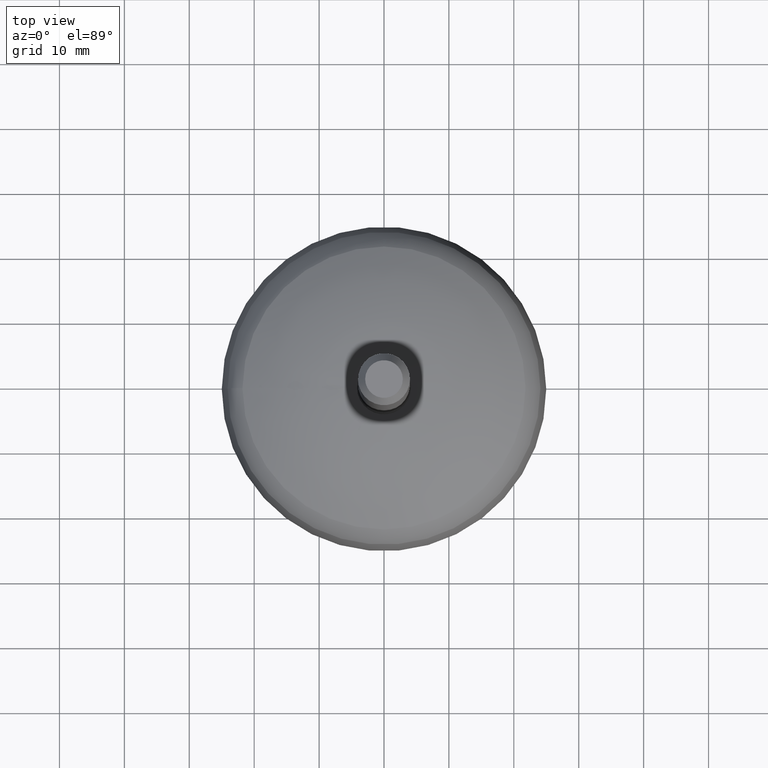
[diagram: clean part render]
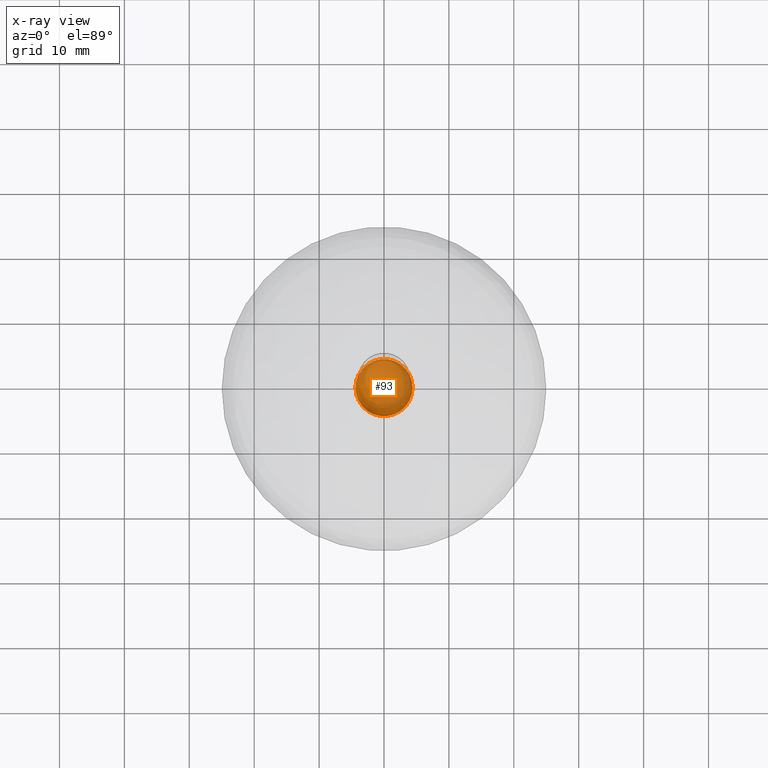
[diagram: x-ray — body ghosted, one internal face saturated and labeled with its STEP entity id]
A machine part, top view, then the same camera in x-ray: the body is ghosted and one INTERNAL B-rep face — a face not visible from any outside direction — is saturated and labeled: STEP entity #93.
In plain terms, the highlighted face is a freeform B-spline surface patch.
Its self-contained STEP definition (entity closure, byte-faithful):
#28=CARTESIAN_POINT('',(-4.400000000014926,-0.000000248901570,11.006289252533795));
#29=CARTESIAN_POINT('',(-4.400000248916524,4.399999999994966,11.006289252533794));
#30=CARTESIAN_POINT('',(-1.998046E-011,4.399999999994966,11.006289252533792));
#31=CARTESIAN_POINT('',(4.399999999974972,4.399999999994966,11.006289252533792));
#32=CARTESIAN_POINT('',(4.399999999974972,1.289336E-014,11.006289252533792));
#33=CARTESIAN_POINT('',(4.399999999974972,-4.399999999994940,11.006289252533792));
#34=CARTESIAN_POINT('',(-1.998046E-011,-4.399999999994940,11.006289252533792));
#35=CARTESIAN_POINT('',(-4.400000248916524,-4.399999999994939,11.006289252533794));
#36=CARTESIAN_POINT('',(-4.400000000014926,0.000000248901595,11.006289252533792));
#37=CARTESIAN_POINT('',(-4.400000000017384,-0.000000248901570,6.606293777734898));
#38=CARTESIAN_POINT('',(-4.400000248918979,4.399999999997423,6.606293777734897));
#39=CARTESIAN_POINT('',(-1.998046E-011,4.399999999997423,6.606293777734897));
#40=CARTESIAN_POINT('',(4.399999999977427,4.399999999997422,6.606293777734897));
#41=CARTESIAN_POINT('',(4.399999999977429,1.289336E-014,6.606293777734897));
#42=CARTESIAN_POINT('',(4.399999999977427,-4.399999999997394,6.606293777734897));
#43=CARTESIAN_POINT('',(-1.998046E-011,-4.399999999997396,6.606293777734897));
#44=CARTESIAN_POINT('',(-4.400000248918979,-4.399999999997395,6.606293777734897));
#45=CARTESIAN_POINT('',(-4.400000000017382,0.000000248901595,6.606293777734897));
#46=CARTESIAN_POINT('',(0.000000124430812,1.993336E-014,6.606293902185694));
#47=CARTESIAN_POINT('',(0.000000124430819,-0.000000124450779,6.606293902185693));
#48=CARTESIAN_POINT('',(-1.998046E-011,-0.000000124450779,6.606293902185692));
#49=CARTESIAN_POINT('',(-0.000000124470772,-0.000000124450779,6.606293902185693));
#50=CARTESIAN_POINT('',(-0.000000124470772,1.289336E-014,6.606293902185692));
#51=CARTESIAN_POINT('',(-0.000000124470772,0.000000124450805,6.606293902185693));
#52=CARTESIAN_POINT('',(-1.998046E-011,0.000000124450805,6.606293902185692));
#53=CARTESIAN_POINT('',(0.000000124430819,0.000000124450805,6.606293902185693));
#54=CARTESIAN_POINT('',(0.000000124430812,5.853360E-015,6.606293902185692));
#62=(BOUNDED_SURFACE()B_SPLINE_SURFACE(2,2,((#28,#37,#46),(#29,#38,#47),(#30,#39,#48),(#31,#40,#49),(#32,#41,#50),(#33,#42,#51),(#34,#43,#52),(#35,#44,#53),(#36,#45,#54)),.UNSPECIFIED.,.T.,.F.,.U.)B_SPLINE_SURFACE_WITH_KNOTS((3,2,2,2,3),(3,3),(-1.000000E-008,0.250000000000000,0.500000000000000,0.750000000000000,1.000000010000000),(0.500000373613391,1.000000010000000),.UNSPECIFIED.)GEOMETRIC_REPRESENTATION_ITEM()RATIONAL_B_SPLINE_SURFACE(((0.999999585716461,0.707106791897226,1.000000035147187),(0.707106459959588,0.499999987573593,0.707106777755090),(0.999999562285013,0.707106775328683,1.000000011715729),(0.707106471675312,0.499999995857865,0.707106789470819),(0.999999562285013,0.707106775328683,1.000000011715729),(0.707106471675312,0.499999995857865,0.707106789470819),(0.999999562285013,0.707106775328683,1.000000011715729),(0.707106459959588,0.499999987573593,0.707106777755090),(0.999999585716461,0.707106791897226,1.000000035147188)))REPRESENTATION_ITEM('')SURFACE());
#63=CARTESIAN_POINT('',(-1.998046E-011,1.289336E-014,6.606293902185692));
#64=VERTEX_POINT('',#63);
#65=CARTESIAN_POINT('',(-4.400000000015094,1.289336E-014,11.006289128082940));
#66=VERTEX_POINT('',#65);
#67=CARTESIAN_POINT('',(-1.998046E-011,1.289336E-014,11.006293902183101));
#68=DIRECTION('',(0.0,1.0,0.0));
#69=DIRECTION('',(-1.0,0.0,0.0));
#70=AXIS2_PLACEMENT_3D('',#67,#68,#69);
#71=CIRCLE('',#70,4.399999999997410);
#72=EDGE_CURVE('',#64,#66,#71,.T.);
#73=ORIENTED_EDGE('',*,*,#72,.T.);
#74=CARTESIAN_POINT('',(4.400000000016932,1.289336E-014,11.006289128082940));
#75=VERTEX_POINT('',#74);
#76=CARTESIAN_POINT('',(1.420543E-012,1.289336E-014,11.006289128082940));
#77=DIRECTION('',(0.0,0.0,-1.0));
#78=DIRECTION('',(-1.0,0.0,0.0));
#79=AXIS2_PLACEMENT_3D('',#76,#77,#78);
#80=CIRCLE('',#79,4.400000000015512);
#81=EDGE_CURVE('',#75,#66,#80,.T.);
#82=ORIENTED_EDGE('',*,*,#81,.F.);
#83=CARTESIAN_POINT('',(1.420543E-012,1.289336E-014,11.006289128082940));
#84=DIRECTION('',(0.0,0.0,-1.0));
#85=DIRECTION('',(-1.0,0.0,0.0));
#86=AXIS2_PLACEMENT_3D('',#83,#84,#85);
#87=CIRCLE('',#86,4.400000000015512);
#88=EDGE_CURVE('',#66,#75,#87,.T.);
#89=ORIENTED_EDGE('',*,*,#88,.F.);
#90=ORIENTED_EDGE('',*,*,#72,.F.);
#91=EDGE_LOOP('',(#73,#82,#89,#90));
#92=FACE_OUTER_BOUND('',#91,.T.);
#93=ADVANCED_FACE('',(#92),#62,.F.);